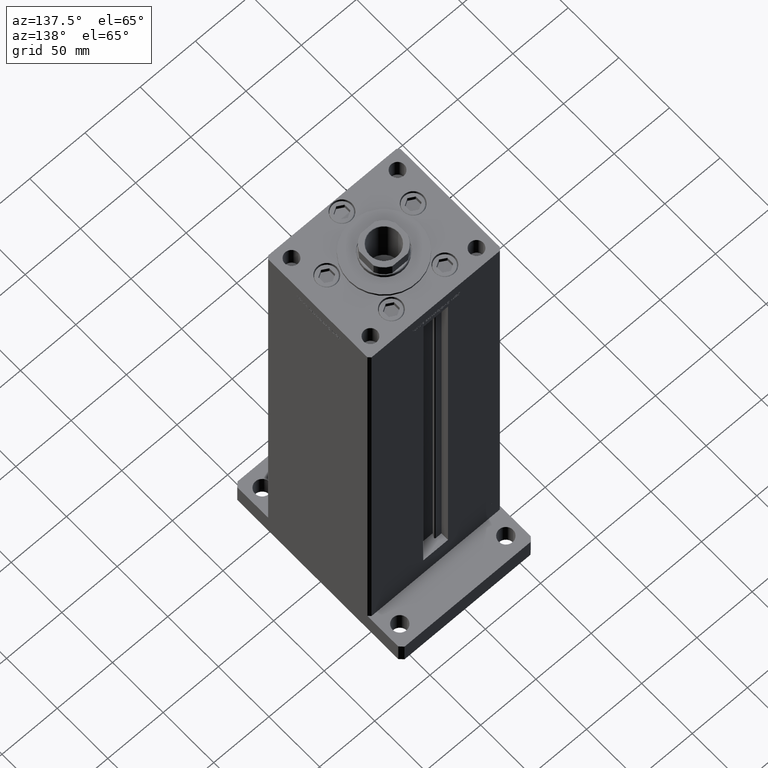
[diagram: clean part render]
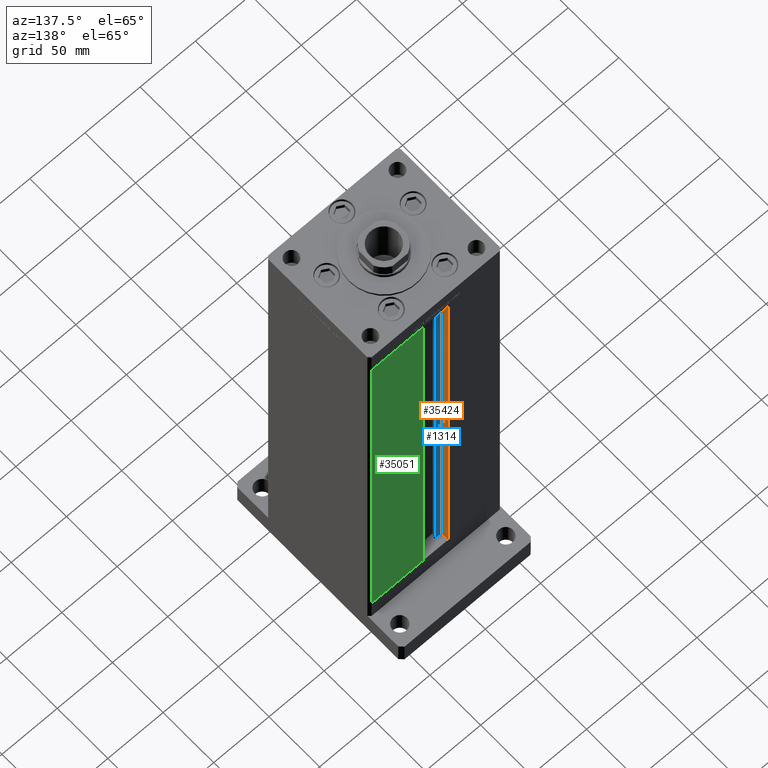
[diagram: same view with three faces highlighted in distinct colors, each labeled with its STEP entity id]
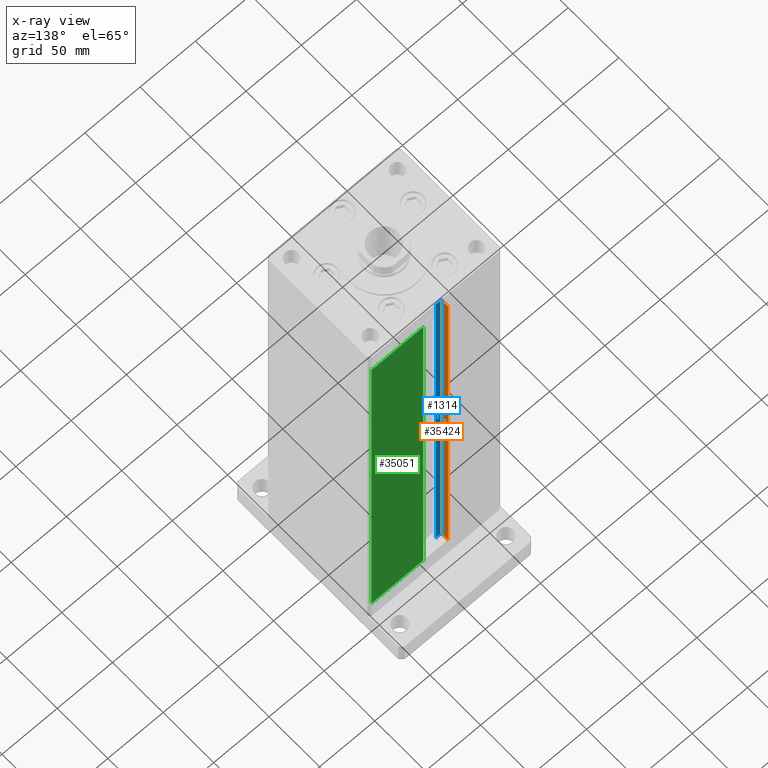
[diagram: x-ray of the same camera — body ghosted, the three highlighted faces saturated]
A machine part, auxiliary view with three faces highlighted in distinct colors.
The next image is the same camera in x-ray (body ghosted, the three faces saturated) — at least one of them is partly hidden behind the body in this view.
Their STEP definitions:

[orange] entity #35424 — the highlighted planar face has unit normal (-1, 0, 0).
#802 = FACE_OUTER_BOUND ( 'NONE', #18734, .T. ) ;
#3123 = EDGE_CURVE ( 'NONE', #6244, #18452, #39764, .T. ) ;
#3423 = CARTESIAN_POINT ( 'NONE',  ( -11.25000000000000178, 51.00000000000000000, 0.000000000000000000 ) ) ;
#5068 = LINE ( 'NONE', #51145, #49894 ) ;
#6244 = VERTEX_POINT ( 'NONE', #49536 ) ;
#6796 = VERTEX_POINT ( 'NONE', #42053 ) ;
#7477 = EDGE_CURVE ( 'NONE', #6244, #6796, #9863, .T. ) ;
#8736 = CARTESIAN_POINT ( 'NONE',  ( -11.25000000000000178, 51.00000000000000000, 368.5000000000000000 ) ) ;
#9863 = LINE ( 'NONE', #26401, #23032 ) ;
#10292 = DIRECTION ( 'NONE',  ( 0.000000000000000000, 0.000000000000000000, 1.000000000000000000 ) ) ;
#10664 = DIRECTION ( 'NONE',  ( -0.000000000000000000, -1.000000000000000000, -0.000000000000000000 ) ) ;
#11581 = ORIENTED_EDGE ( 'NONE', *, *, #42794, .F. ) ;
#13302 = PLANE ( 'NONE',  #34888 ) ;
#15205 = ORIENTED_EDGE ( 'NONE', *, *, #3123, .T. ) ;
#17818 = DIRECTION ( 'NONE',  ( 0.000000000000000000, 1.000000000000000000, 0.000000000000000000 ) ) ;
#18452 = VERTEX_POINT ( 'NONE', #8736 ) ;
#18734 = EDGE_LOOP ( 'NONE', ( #25013, #39928, #15205, #11581 ) ) ;
#22703 = VECTOR ( 'NONE', #49723, 1000.000000000000000 ) ;
#23032 = VECTOR ( 'NONE', #10664, 1000.000000000000000 ) ;
#25013 = ORIENTED_EDGE ( 'NONE', *, *, #32549, .F. ) ;
#26401 = CARTESIAN_POINT ( 'NONE',  ( -11.25000000000000178, 44.50000000000000000, 0.000000000000000000 ) ) ;
#29443 = VERTEX_POINT ( 'NONE', #51391 ) ;
#32549 = EDGE_CURVE ( 'NONE', #6796, #29443, #45650, .T. ) ;
#34888 = AXIS2_PLACEMENT_3D ( 'NONE', #45290, #49638, #10292 ) ;
#35424 = ADVANCED_FACE ( 'NONE', ( #802 ), #13302, .F. ) ;
#36708 = CARTESIAN_POINT ( 'NONE',  ( -11.25000000000000178, 44.50000000000000000, 0.000000000000000000 ) ) ;
#39764 = LINE ( 'NONE', #3423, #45529 ) ;
#39928 = ORIENTED_EDGE ( 'NONE', *, *, #7477, .F. ) ;
#42053 = CARTESIAN_POINT ( 'NONE',  ( -11.25000000000000178, 44.50000000000000000, 0.000000000000000000 ) ) ;
#42794 = EDGE_CURVE ( 'NONE', #29443, #18452, #5068, .T. ) ;
#43558 = DIRECTION ( 'NONE',  ( -0.000000000000000000, -0.000000000000000000, 1.000000000000000000 ) ) ;
#45290 = CARTESIAN_POINT ( 'NONE',  ( -11.25000000000000178, 44.50000000000000000, 0.000000000000000000 ) ) ;
#45529 = VECTOR ( 'NONE', #43558, 1000.000000000000000 ) ;
#45650 = LINE ( 'NONE', #36708, #22703 ) ;
#49536 = CARTESIAN_POINT ( 'NONE',  ( -11.25000000000000178, 51.00000000000000000, 0.000000000000000000 ) ) ;
#49638 = DIRECTION ( 'NONE',  ( -1.000000000000000000, 0.000000000000000000, 0.000000000000000000 ) ) ;
#49723 = DIRECTION ( 'NONE',  ( -0.000000000000000000, -0.000000000000000000, 1.000000000000000000 ) ) ;
#49894 = VECTOR ( 'NONE', #17818, 1000.000000000000000 ) ;
#51145 = CARTESIAN_POINT ( 'NONE',  ( -11.25000000000000178, 0.000000000000000000, 368.5000000000000000 ) ) ;
#51391 = CARTESIAN_POINT ( 'NONE',  ( -11.25000000000000178, 44.50000000000000000, 368.5000000000000000 ) ) ;

[blue] entity #1314 — the highlighted planar face has unit normal (0, -1, 0).
#1314 = ADVANCED_FACE ( 'NONE', ( #33407 ), #29347, .F. ) ;
#1774 = ORIENTED_EDGE ( 'NONE', *, *, #32549, .T. ) ;
#2149 = CARTESIAN_POINT ( 'NONE',  ( 0.000000000000000000, 44.50000000000000000, 368.5000000000000000 ) ) ;
#3011 = AXIS2_PLACEMENT_3D ( 'NONE', #18414, #49694, #34936 ) ;
#4722 = LINE ( 'NONE', #37804, #14574 ) ;
#6796 = VERTEX_POINT ( 'NONE', #42053 ) ;
#10423 = VECTOR ( 'NONE', #48286, 1000.000000000000000 ) ;
#14574 = VECTOR ( 'NONE', #29655, 1000.000000000000000 ) ;
#15086 = EDGE_CURVE ( 'NONE', #6796, #53339, #4722, .T. ) ;
#17122 = VERTEX_POINT ( 'NONE', #47055 ) ;
#18414 = CARTESIAN_POINT ( 'NONE',  ( -6.183333333334001480, 44.50000000000000000, 0.000000000000000000 ) ) ;
#19001 = ORIENTED_EDGE ( 'NONE', *, *, #22334, .F. ) ;
#22334 = EDGE_CURVE ( 'NONE', #53339, #17122, #27684, .T. ) ;
#22703 = VECTOR ( 'NONE', #49723, 1000.000000000000000 ) ;
#22903 = VECTOR ( 'NONE', #24919, 1000.000000000000000 ) ;
#23883 = CARTESIAN_POINT ( 'NONE',  ( -6.183333333334001480, 44.50000000000000000, 0.000000000000000000 ) ) ;
#24919 = DIRECTION ( 'NONE',  ( -1.000000000000000000, 0.000000000000000000, 0.000000000000000000 ) ) ;
#26521 = EDGE_LOOP ( 'NONE', ( #19001, #26936, #1774, #49749 ) ) ;
#26936 = ORIENTED_EDGE ( 'NONE', *, *, #15086, .F. ) ;
#27684 = LINE ( 'NONE', #23883, #10423 ) ;
#29347 = PLANE ( 'NONE',  #3011 ) ;
#29443 = VERTEX_POINT ( 'NONE', #51391 ) ;
#29655 = DIRECTION ( 'NONE',  ( 1.000000000000000000, -0.000000000000000000, -0.000000000000000000 ) ) ;
#32549 = EDGE_CURVE ( 'NONE', #6796, #29443, #45650, .T. ) ;
#33407 = FACE_OUTER_BOUND ( 'NONE', #26521, .T. ) ;
#34936 = DIRECTION ( 'NONE',  ( 0.000000000000000000, 0.000000000000000000, -1.000000000000000000 ) ) ;
#36708 = CARTESIAN_POINT ( 'NONE',  ( -11.25000000000000178, 44.50000000000000000, 0.000000000000000000 ) ) ;
#37804 = CARTESIAN_POINT ( 'NONE',  ( -6.183333333334001480, 44.50000000000000000, 0.000000000000000000 ) ) ;
#39571 = EDGE_CURVE ( 'NONE', #17122, #29443, #44711, .T. ) ;
#42053 = CARTESIAN_POINT ( 'NONE',  ( -11.25000000000000178, 44.50000000000000000, 0.000000000000000000 ) ) ;
#42940 = CARTESIAN_POINT ( 'NONE',  ( -6.183333333334001480, 44.50000000000000000, 0.000000000000000000 ) ) ;
#44711 = LINE ( 'NONE', #2149, #22903 ) ;
#45650 = LINE ( 'NONE', #36708, #22703 ) ;
#47055 = CARTESIAN_POINT ( 'NONE',  ( -6.183333333334001480, 44.50000000000000000, 368.5000000000000000 ) ) ;
#48286 = DIRECTION ( 'NONE',  ( -0.000000000000000000, -0.000000000000000000, 1.000000000000000000 ) ) ;
#49694 = DIRECTION ( 'NONE',  ( 0.000000000000000000, -1.000000000000000000, -0.000000000000000000 ) ) ;
#49723 = DIRECTION ( 'NONE',  ( -0.000000000000000000, -0.000000000000000000, 1.000000000000000000 ) ) ;
#49749 = ORIENTED_EDGE ( 'NONE', *, *, #39571, .F. ) ;
#51391 = CARTESIAN_POINT ( 'NONE',  ( -11.25000000000000178, 44.50000000000000000, 368.5000000000000000 ) ) ;
#53339 = VERTEX_POINT ( 'NONE', #42940 ) ;

[green] entity #35051 — the highlighted planar face has unit normal (-0, -1, 0).
#604 = DIRECTION ( 'NONE',  ( 1.000000000000000000, -1.484255380514915423E-16, 0.000000000000000000 ) ) ;
#1222 = CARTESIAN_POINT ( 'NONE',  ( 57.99999999999999289, 51.00000000000000711, 368.5000000000000000 ) ) ;
#1829 = VERTEX_POINT ( 'NONE', #8822 ) ;
#2265 = LINE ( 'NONE', #26143, #2806 ) ;
#2652 = EDGE_CURVE ( 'NONE', #22388, #21971, #11100, .T. ) ;
#2806 = VECTOR ( 'NONE', #47290, 1000.000000000000000 ) ;
#3798 = CARTESIAN_POINT ( 'NONE',  ( 11.25000000000000178, 51.00000000000000000, 0.000000000000000000 ) ) ;
#7019 = DIRECTION ( 'NONE',  ( -1.000000000000000000, 1.484255380514915423E-16, 0.000000000000000000 ) ) ;
#8822 = CARTESIAN_POINT ( 'NONE',  ( 11.24999999999999467, 51.00000000000000000, 368.5000000000000000 ) ) ;
#10323 = ORIENTED_EDGE ( 'NONE', *, *, #46024, .T. ) ;
#10746 = LINE ( 'NONE', #52489, #15466 ) ;
#11100 = LINE ( 'NONE', #44156, #15235 ) ;
#11990 = ORIENTED_EDGE ( 'NONE', *, *, #34244, .T. ) ;
#15235 = VECTOR ( 'NONE', #7019, 1000.000000000000000 ) ;
#15466 = VECTOR ( 'NONE', #31600, 1000.000000000000000 ) ;
#16666 = EDGE_CURVE ( 'NONE', #21971, #1829, #10746, .T. ) ;
#16711 = CARTESIAN_POINT ( 'NONE',  ( 57.99999999999999289, 51.00000000000000711, 368.5000000000000000 ) ) ;
#16904 = FACE_OUTER_BOUND ( 'NONE', #49143, .T. ) ;
#21441 = VECTOR ( 'NONE', #48053, 1000.000000000000000 ) ;
#21971 = VERTEX_POINT ( 'NONE', #3798 ) ;
#22388 = VERTEX_POINT ( 'NONE', #39866 ) ;
#23843 = VERTEX_POINT ( 'NONE', #16711 ) ;
#26143 = CARTESIAN_POINT ( 'NONE',  ( -11.25000000000000178, 51.00000000000000000, 368.5000000000000000 ) ) ;
#29091 = PLANE ( 'NONE',  #53092 ) ;
#31495 = LINE ( 'NONE', #1222, #21441 ) ;
#31600 = DIRECTION ( 'NONE',  ( -0.000000000000000000, -0.000000000000000000, 1.000000000000000000 ) ) ;
#34209 = CARTESIAN_POINT ( 'NONE',  ( -11.25000000000000178, 51.00000000000000000, 368.5000000000000000 ) ) ;
#34244 = EDGE_CURVE ( 'NONE', #1829, #23843, #2265, .T. ) ;
#35051 = ADVANCED_FACE ( 'NONE', ( #16904 ), #29091, .F. ) ;
#39866 = CARTESIAN_POINT ( 'NONE',  ( 57.99999999999999289, 51.00000000000000711, 0.000000000000000000 ) ) ;
#39981 = ORIENTED_EDGE ( 'NONE', *, *, #2652, .T. ) ;
#44156 = CARTESIAN_POINT ( 'NONE',  ( -11.25000000000000178, 51.00000000000000000, 0.000000000000000000 ) ) ;
#45899 = DIRECTION ( 'NONE',  ( -1.484255380514915423E-16, -1.000000000000000000, 0.000000000000000000 ) ) ;
#46024 = EDGE_CURVE ( 'NONE', #23843, #22388, #31495, .T. ) ;
#47290 = DIRECTION ( 'NONE',  ( 1.000000000000000000, 0.000000000000000000, 0.000000000000000000 ) ) ;
#48053 = DIRECTION ( 'NONE',  ( -0.000000000000000000, -0.000000000000000000, -1.000000000000000000 ) ) ;
#49143 = EDGE_LOOP ( 'NONE', ( #39981, #50541, #11990, #10323 ) ) ;
#50541 = ORIENTED_EDGE ( 'NONE', *, *, #16666, .T. ) ;
#52489 = CARTESIAN_POINT ( 'NONE',  ( 11.25000000000000178, 51.00000000000000000, 0.000000000000000000 ) ) ;
#53092 = AXIS2_PLACEMENT_3D ( 'NONE', #34209, #45899, #604 ) ;